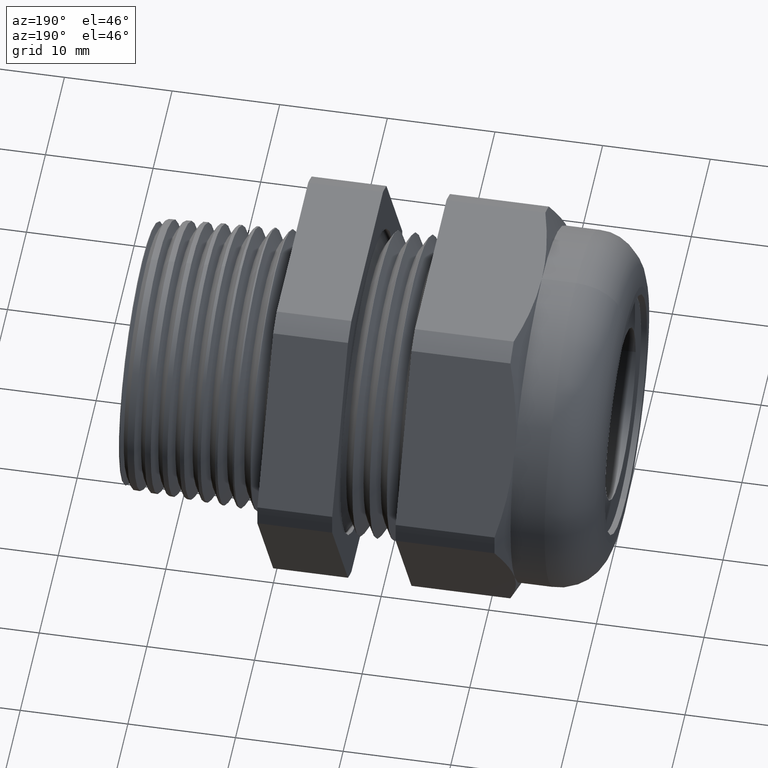
[diagram: clean part render]
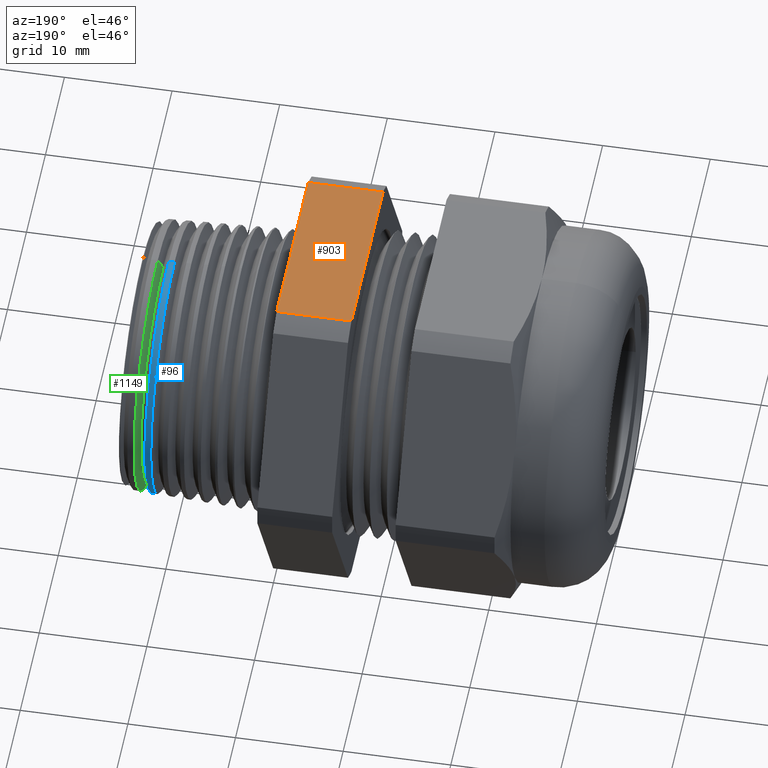
[diagram: same view with three faces highlighted in distinct colors, each labeled with its STEP entity id]
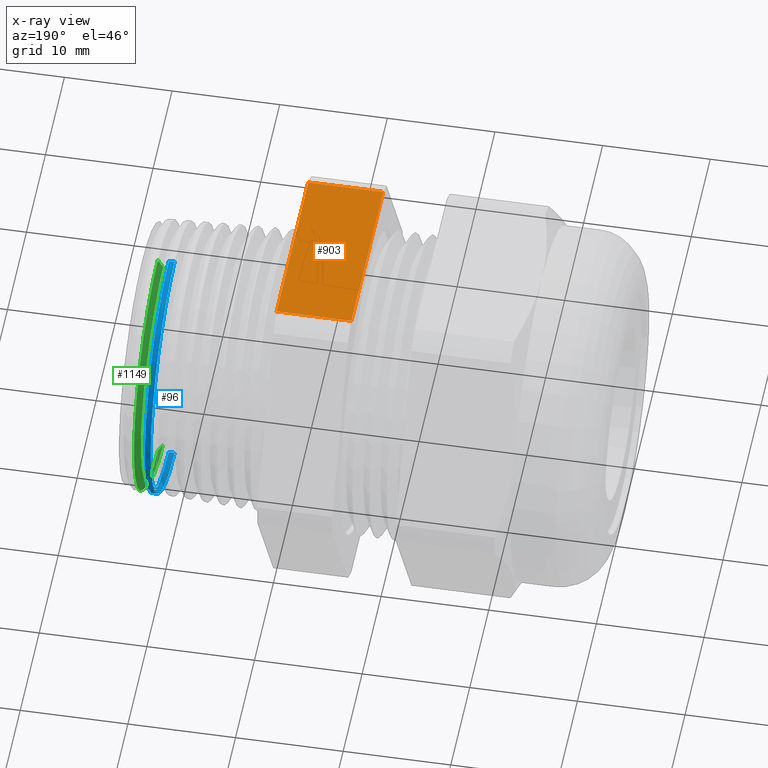
[diagram: x-ray of the same camera — body ghosted, the three highlighted faces saturated]
A machine part, auxiliary view with three faces highlighted in distinct colors.
The next image is the same camera in x-ray (body ghosted, the three faces saturated) — at least one of them is partly hidden behind the body in this view.
Their STEP definitions:

[orange] entity #903 — the highlighted planar face has unit normal (0, 0, 1).
#102 = VERTEX_POINT ( 'NONE', #1488 ) ;
#103 = VERTEX_POINT ( 'NONE', #1487 ) ;
#348 = EDGE_CURVE ( 'NONE', #103, #102, #2011, .T. ) ;
#774 = VERTEX_POINT ( 'NONE', #2882 ) ;
#776 = EDGE_CURVE ( 'NONE', #774, #103, #2881, .T. ) ;
#781 = EDGE_CURVE ( 'NONE', #834, #102, #2875, .T. ) ;
#830 = EDGE_CURVE ( 'NONE', #774, #834, #2931, .T. ) ;
#834 = VERTEX_POINT ( 'NONE', #2923 ) ;
#880 = ORIENTED_EDGE ( 'NONE', *, *, #830, .T. ) ;
#881 = ORIENTED_EDGE ( 'NONE', *, *, #781, .T. ) ;
#882 = ORIENTED_EDGE ( 'NONE', *, *, #348, .F. ) ;
#883 = ORIENTED_EDGE ( 'NONE', *, *, #776, .F. ) ;
#903 = ADVANCED_FACE ( 'NONE', ( #3042 ), #3041, .T. ) ;
#904 = EDGE_LOOP ( 'NONE', ( #880, #881, #882, #883 ) ) ;
#1487 = CARTESIAN_POINT ( 'NONE',  ( 0.0000000000000000000, 0.3278475255358810900, 0.6500000000000000200 ) ) ;
#1488 = CARTESIAN_POINT ( 'NONE',  ( 0.0000000000000000000, -0.3278475255358810900, 0.6500000000000000200 ) ) ;
#2004 = DIRECTION ( 'NONE',  ( 0.0000000000000000000, -1.000000000000000000, 0.0000000000000000000 ) ) ;
#2005 = VECTOR ( 'NONE', #2004, 39.37007874015748100 ) ;
#2006 = CARTESIAN_POINT ( 'NONE',  ( 0.0000000000000000000, 0.3278475255358810900, 0.6500000000000000200 ) ) ;
#2011 = LINE ( 'NONE', #2006, #2005 ) ;
#2868 = DIRECTION ( 'NONE',  ( 1.000000000000000000, 0.0000000000000000000, 0.0000000000000000000 ) ) ;
#2869 = VECTOR ( 'NONE', #2868, 39.37007874015748100 ) ;
#2870 = CARTESIAN_POINT ( 'NONE',  ( -2.992185896283379600, -0.3278475255358810900, 0.6500000000000000200 ) ) ;
#2875 = LINE ( 'NONE', #2870, #2869 ) ;
#2878 = DIRECTION ( 'NONE',  ( 1.000000000000000000, 0.0000000000000000000, 0.0000000000000000000 ) ) ;
#2879 = VECTOR ( 'NONE', #2878, 39.37007874015748100 ) ;
#2880 = CARTESIAN_POINT ( 'NONE',  ( -2.992185896283379600, 0.3278475255358810900, 0.6500000000000000200 ) ) ;
#2881 = LINE ( 'NONE', #2880, #2879 ) ;
#2882 = CARTESIAN_POINT ( 'NONE',  ( -0.2736318407960199300, 0.3278475255358810300, 0.6500000000000000200 ) ) ;
#2923 = CARTESIAN_POINT ( 'NONE',  ( -0.2736318407960196500, -0.3278475255358810900, 0.6500000000000000200 ) ) ;
#2928 = DIRECTION ( 'NONE',  ( 0.0000000000000000000, -1.000000000000000000, 0.0000000000000000000 ) ) ;
#2929 = VECTOR ( 'NONE', #2928, 39.37007874015748100 ) ;
#2930 = CARTESIAN_POINT ( 'NONE',  ( -0.2736318407960199300, 0.5565000000000002200, 0.6500000000000000200 ) ) ;
#2931 = LINE ( 'NONE', #2930, #2929 ) ;
#3037 = DIRECTION ( 'NONE',  ( 1.000000000000000000, 0.0000000000000000000, 0.0000000000000000000 ) ) ;
#3038 = DIRECTION ( 'NONE',  ( 0.0000000000000000000, 0.0000000000000000000, 1.000000000000000000 ) ) ;
#3039 = CARTESIAN_POINT ( 'NONE',  ( -2.992185896283379600, 0.3278475255358810900, 0.6500000000000000200 ) ) ;
#3040 = AXIS2_PLACEMENT_3D ( 'NONE', #3039, #3038, #3037 ) ;
#3041 = PLANE ( 'NONE',  #3040 ) ;
#3042 = FACE_OUTER_BOUND ( 'NONE', #904, .T. ) ;

[blue] entity #96 — the highlighted conical surface has half-angle 2.5 deg.
#62 = EDGE_LOOP ( 'NONE', ( #95, #100, #374, #376 ) ) ;
#94 = EDGE_CURVE ( 'NONE', #1215, #1178, #1504, .T. ) ;
#95 = ORIENTED_EDGE ( 'NONE', *, *, #1134, .F. ) ;
#96 = ADVANCED_FACE ( 'NONE', ( #1500 ), #1498, .T. ) ;
#100 = ORIENTED_EDGE ( 'NONE', *, *, #94, .T. ) ;
#367 = EDGE_CURVE ( 'NONE', #1135, #1175, #2040, .T. ) ;
#374 = ORIENTED_EDGE ( 'NONE', *, *, #1177, .F. ) ;
#376 = ORIENTED_EDGE ( 'NONE', *, *, #367, .F. ) ;
#1134 = EDGE_CURVE ( 'NONE', #1215, #1135, #3317, .T. ) ;
#1135 = VERTEX_POINT ( 'NONE', #3313 ) ;
#1175 = VERTEX_POINT ( 'NONE', #3431 ) ;
#1177 = EDGE_CURVE ( 'NONE', #1175, #1178, #3430, .T. ) ;
#1178 = VERTEX_POINT ( 'NONE', #3425 ) ;
#1215 = VERTEX_POINT ( 'NONE', #3485 ) ;
#1494 = DIRECTION ( 'NONE',  ( 0.0000000000000000000, 0.0000000000000000000, 1.000000000000000000 ) ) ;
#1495 = DIRECTION ( 'NONE',  ( -1.000000000000000000, 0.0000000000000000000, 0.0000000000000000000 ) ) ;
#1496 = CARTESIAN_POINT ( 'NONE',  ( 0.5500000000000001600, 0.0000000000000000000, 0.0000000000000000000 ) ) ;
#1497 = AXIS2_PLACEMENT_3D ( 'NONE', #1496, #1495, #1494 ) ;
#1498 = CONICAL_SURFACE ( 'NONE', #1497, 0.4909864814003183600, 0.04363323129985834100 ) ;
#1500 = FACE_OUTER_BOUND ( 'NONE', #62, .T. ) ;
#1501 = DIRECTION ( 'NONE',  ( -0.9990482215818576900, 5.341834311772736400E-018, -0.04361938736533610400 ) ) ;
#1502 = VECTOR ( 'NONE', #1501, 39.37007874015748100 ) ;
#1503 = CARTESIAN_POINT ( 'NONE',  ( 0.5500000000000001600, 6.012850228715212800E-017, -0.4909864814003183600 ) ) ;
#1504 = LINE ( 'NONE', #1503, #1502 ) ;
#2037 = DIRECTION ( 'NONE',  ( -0.9990482215818576900, 0.0000000000000000000, 0.04361938736533610400 ) ) ;
#2038 = VECTOR ( 'NONE', #2037, 39.37007874015748100 ) ;
#2039 = CARTESIAN_POINT ( 'NONE',  ( 0.5500000000000001600, 0.0000000000000000000, 0.4909864814003183600 ) ) ;
#2040 = LINE ( 'NONE', #2039, #2038 ) ;
#3313 = CARTESIAN_POINT ( 'NONE',  ( 0.4524040460829978900, 0.0000000000000000000, 0.4952476127723903200 ) ) ;
#3314 = DIRECTION ( 'NONE',  ( 0.0000000000000000000, 0.0000000000000000000, 1.000000000000000000 ) ) ;
#3315 = DIRECTION ( 'NONE',  ( 1.000000000000000000, 0.0000000000000000000, 0.0000000000000000000 ) ) ;
#3316 = AXIS2_PLACEMENT_3D ( 'NONE', #3321, #3315, #3314 ) ;
#3317 = CIRCLE ( 'NONE', #3316, 0.4952476127723903200 ) ;
#3321 = CARTESIAN_POINT ( 'NONE',  ( 0.4524040460829978900, 0.0000000000000000000, 0.0000000000000000000 ) ) ;
#3425 = CARTESIAN_POINT ( 'NONE',  ( 0.4308042873815414200, 6.076583263190098000E-017, -0.4961906786038922700 ) ) ;
#3426 = DIRECTION ( 'NONE',  ( 0.0000000000000000000, 0.0000000000000000000, -1.000000000000000000 ) ) ;
#3427 = DIRECTION ( 'NONE',  ( -1.000000000000000000, 0.0000000000000000000, 0.0000000000000000000 ) ) ;
#3428 = CARTESIAN_POINT ( 'NONE',  ( 0.4308042873815414200, 0.0000000000000000000, 0.0000000000000000000 ) ) ;
#3429 = AXIS2_PLACEMENT_3D ( 'NONE', #3428, #3427, #3426 ) ;
#3430 = CIRCLE ( 'NONE', #3429, 0.4961906786038922100 ) ;
#3431 = CARTESIAN_POINT ( 'NONE',  ( 0.4308042873815414200, 0.0000000000000000000, 0.4961906786038922700 ) ) ;
#3485 = CARTESIAN_POINT ( 'NONE',  ( 0.4524040460829978900, 6.070808650430426800E-017, -0.4952476127723903200 ) ) ;

[green] entity #1149 — the highlighted conical surface has half-angle 60 deg.
#1149 = ADVANCED_FACE ( 'NONE', ( #3347 ), #3346, .T. ) ;
#1150 = EDGE_LOOP ( 'NONE', ( #1151, #1155, #1158, #1161 ) ) ;
#1151 = ORIENTED_EDGE ( 'NONE', *, *, #1152, .F. ) ;
#1152 = EDGE_CURVE ( 'NONE', #1153, #1154, #3403, .T. ) ;
#1153 = VERTEX_POINT ( 'NONE', #3398 ) ;
#1154 = VERTEX_POINT ( 'NONE', #3397 ) ;
#1155 = ORIENTED_EDGE ( 'NONE', *, *, #1156, .T. ) ;
#1156 = EDGE_CURVE ( 'NONE', #1153, #1157, #3396, .T. ) ;
#1157 = VERTEX_POINT ( 'NONE', #3392 ) ;
#1158 = ORIENTED_EDGE ( 'NONE', *, *, #1159, .T. ) ;
#1159 = EDGE_CURVE ( 'NONE', #1157, #1160, #3391, .T. ) ;
#1160 = VERTEX_POINT ( 'NONE', #3386 ) ;
#1161 = ORIENTED_EDGE ( 'NONE', *, *, #1162, .F. ) ;
#1162 = EDGE_CURVE ( 'NONE', #1154, #1160, #3385, .T. ) ;
#3342 = DIRECTION ( 'NONE',  ( 0.0000000000000000000, 0.0000000000000000000, -1.000000000000000000 ) ) ;
#3343 = DIRECTION ( 'NONE',  ( 1.000000000000000000, 0.0000000000000000000, 0.0000000000000000000 ) ) ;
#3344 = CARTESIAN_POINT ( 'NONE',  ( 0.4728319270764286300, 0.0000000000000000000, 0.0000000000000000000 ) ) ;
#3345 = AXIS2_PLACEMENT_3D ( 'NONE', #3344, #3343, #3342 ) ;
#3346 = CONICAL_SURFACE ( 'NONE', #3345, 0.4598654850007972700, 1.047197551196595600 ) ;
#3347 = FACE_OUTER_BOUND ( 'NONE', #1150, .T. ) ;
#3382 = DIRECTION ( 'NONE',  ( 0.5000000000000017800, 0.0000000000000000000, -0.8660254037844374900 ) ) ;
#3383 = VECTOR ( 'NONE', #3382, 39.37007874015748100 ) ;
#3384 = CARTESIAN_POINT ( 'NONE',  ( 0.4728319270764286300, 0.0000000000000000000, -0.4598654850007972700 ) ) ;
#3385 = LINE ( 'NONE', #3384, #3383 ) ;
#3386 = CARTESIAN_POINT ( 'NONE',  ( 0.4922552525212970400, 6.043725902856145600E-017, -0.4935076715232524800 ) ) ;
#3387 = DIRECTION ( 'NONE',  ( 0.0000000000000000000, 0.0000000000000000000, -1.000000000000000000 ) ) ;
#3388 = DIRECTION ( 'NONE',  ( -1.000000000000000000, 0.0000000000000000000, 0.0000000000000000000 ) ) ;
#3389 = CARTESIAN_POINT ( 'NONE',  ( 0.4922552525212970400, 0.0000000000000000000, 0.0000000000000000000 ) ) ;
#3390 = AXIS2_PLACEMENT_3D ( 'NONE', #3389, #3388, #3387 ) ;
#3391 = CIRCLE ( 'NONE', #3390, 0.4935076715232523700 ) ;
#3392 = CARTESIAN_POINT ( 'NONE',  ( 0.4922552525212970400, 0.0000000000000000000, 0.4935076715232524800 ) ) ;
#3393 = DIRECTION ( 'NONE',  ( 0.5000000000000017800, 1.060575238724905400E-016, 0.8660254037844374900 ) ) ;
#3394 = VECTOR ( 'NONE', #3393, 39.37007874015748100 ) ;
#3395 = CARTESIAN_POINT ( 'NONE',  ( 0.4728319270764286300, 5.631727942445715900E-017, 0.4598654850007972700 ) ) ;
#3396 = LINE ( 'NONE', #3395, #3394 ) ;
#3397 = CARTESIAN_POINT ( 'NONE',  ( 0.4728319270764286300, 5.848380990058235700E-017, -0.4598654850007972700 ) ) ;
#3398 = CARTESIAN_POINT ( 'NONE',  ( 0.4728319270764286300, 0.0000000000000000000, 0.4598654850007972700 ) ) ;
#3399 = DIRECTION ( 'NONE',  ( 0.0000000000000000000, 0.0000000000000000000, 1.000000000000000000 ) ) ;
#3400 = DIRECTION ( 'NONE',  ( -1.000000000000000000, 0.0000000000000000000, 0.0000000000000000000 ) ) ;
#3401 = CARTESIAN_POINT ( 'NONE',  ( 0.4728319270764286300, 0.0000000000000000000, 0.0000000000000000000 ) ) ;
#3402 = AXIS2_PLACEMENT_3D ( 'NONE', #3401, #3400, #3399 ) ;
#3403 = CIRCLE ( 'NONE', #3402, 0.4598654850007972700 ) ;